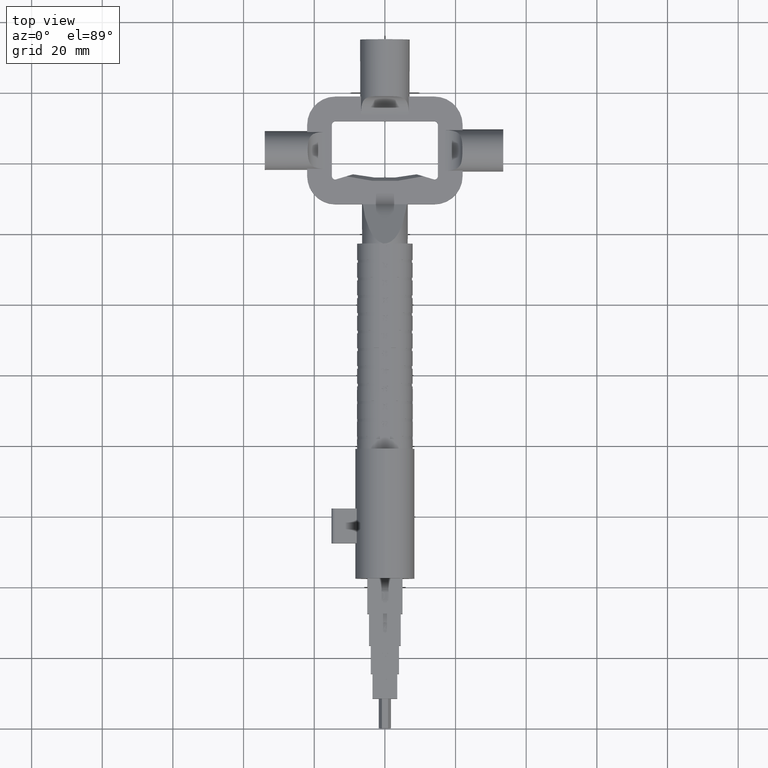
[diagram: clean part render]
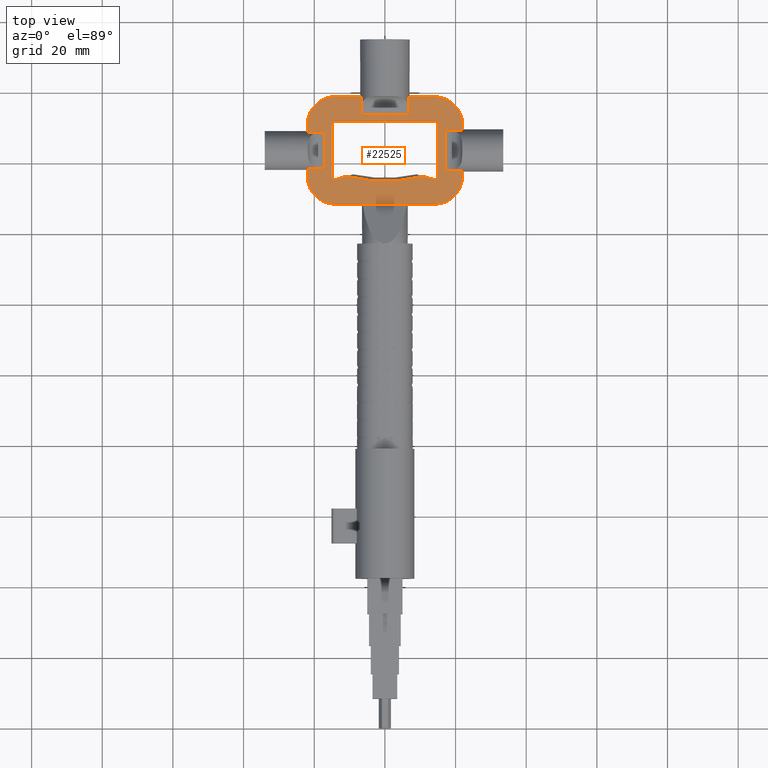
[diagram: same view with one face highlighted and labeled with its STEP entity id]
A machine part, top view. The second image highlights one B-rep face of the part: STEP entity #22525.
In plain terms, the highlighted planar face has unit normal (-0, 0, -1).
Its self-contained STEP definition (entity closure, byte-faithful):
#41 = AXIS2_PLACEMENT_3D ( 'NONE', #27260, #9884, #1859 ) ;
#318 = ORIENTED_EDGE ( 'NONE', *, *, #49266, .F. ) ;
#438 = DIRECTION ( 'NONE',  ( 1.000000000000000000, -0.000000000000000000, -0.000000000000000000 ) ) ;
#579 = VERTEX_POINT ( 'NONE', #19972 ) ;
#1099 = DIRECTION ( 'NONE',  ( -1.000000000000000000, 0.000000000000000000, 0.000000000000000000 ) ) ;
#1153 = DIRECTION ( 'NONE',  ( 1.000000000000000000, 0.000000000000000000, 0.000000000000000000 ) ) ;
#1189 = VECTOR ( 'NONE', #30305, 1000.000000000000000 ) ;
#1290 = LINE ( 'NONE', #36945, #32459 ) ;
#1396 = AXIS2_PLACEMENT_3D ( 'NONE', #38120, #12580, #25663 ) ;
#1762 = ORIENTED_EDGE ( 'NONE', *, *, #46426, .T. ) ;
#1859 = DIRECTION ( 'NONE',  ( 1.000000000000000000, 0.000000000000000000, 0.000000000000000000 ) ) ;
#1978 = VERTEX_POINT ( 'NONE', #24123 ) ;
#2190 = VERTEX_POINT ( 'NONE', #44877 ) ;
#2403 = VERTEX_POINT ( 'NONE', #36222 ) ;
#2696 = EDGE_CURVE ( 'NONE', #5194, #45800, #54187, .T. ) ;
#3520 = DIRECTION ( 'NONE',  ( -1.000000000000000000, -0.000000000000000000, -0.000000000000000000 ) ) ;
#3738 = LINE ( 'NONE', #11865, #48816 ) ;
#4007 = CARTESIAN_POINT ( 'NONE',  ( 13.99999999999999822, 156.3500000000000227, 1.774999999999999911 ) ) ;
#4045 = ORIENTED_EDGE ( 'NONE', *, *, #7936, .T. ) ;
#4261 = EDGE_CURVE ( 'NONE', #54300, #40722, #44534, .T. ) ;
#4347 = ORIENTED_EDGE ( 'NONE', *, *, #53432, .F. ) ;
#4351 = PLANE ( 'NONE',  #20973 ) ;
#4383 = VERTEX_POINT ( 'NONE', #49655 ) ;
#4449 = CARTESIAN_POINT ( 'NONE',  ( -13.99999999999999822, 170.8499999999999659, 1.774999999999999911 ) ) ;
#4695 = VECTOR ( 'NONE', #27708, 1000.000000000000000 ) ;
#4720 = DIRECTION ( 'NONE',  ( -0.000000000000000000, 0.000000000000000000, -1.000000000000000000 ) ) ;
#4725 = CARTESIAN_POINT ( 'NONE',  ( 13.99999999999999645, 148.3500000000000227, 1.774999999999999911 ) ) ;
#4727 = CIRCLE ( 'NONE', #19438, 1.000000000000002665 ) ;
#4735 = CARTESIAN_POINT ( 'NONE',  ( 13.99999999999999645, 148.3500000000000227, 1.774999999999999911 ) ) ;
#5189 = LINE ( 'NONE', #27889, #19104 ) ;
#5194 = VERTEX_POINT ( 'NONE', #12768 ) ;
#5511 = EDGE_CURVE ( 'NONE', #41476, #5194, #4727, .T. ) ;
#5743 = EDGE_LOOP ( 'NONE', ( #31504, #37375, #10492, #1762, #4045, #4347, #12259, #24055, #40278, #49239, #38031, #16485, #28990, #47144, #8316, #48904, #48134, #54723, #13640, #35166, #22591, #29968 ) ) ;
#5950 = DIRECTION ( 'NONE',  ( 0.000000000000000000, 0.000000000000000000, 1.000000000000000000 ) ) ;
#6170 = VERTEX_POINT ( 'NONE', #41458 ) ;
#6483 = VERTEX_POINT ( 'NONE', #17958 ) ;
#7261 = FACE_BOUND ( 'NONE', #36229, .T. ) ;
#7936 = EDGE_CURVE ( 'NONE', #45518, #6483, #46288, .T. ) ;
#8166 = EDGE_CURVE ( 'NONE', #13368, #1978, #31732, .T. ) ;
#8316 = ORIENTED_EDGE ( 'NONE', *, *, #29150, .T. ) ;
#8644 = CARTESIAN_POINT ( 'NONE',  ( -13.99999999999999822, 170.8499999999999659, 1.774999999999999911 ) ) ;
#8705 = DIRECTION ( 'NONE',  ( 0.000000000000000000, 1.000000000000000000, 0.000000000000000000 ) ) ;
#8744 = DIRECTION ( 'NONE',  ( 0.000000000000000000, 0.000000000000000000, 1.000000000000000000 ) ) ;
#8809 = LINE ( 'NONE', #14670, #29969 ) ;
#9296 = CARTESIAN_POINT ( 'NONE',  ( 22.00000000000000000, 170.8499999999999659, 1.774999999999999911 ) ) ;
#9746 = CARTESIAN_POINT ( 'NONE',  ( -22.00000000000000000, 168.8057060039921566, 1.774999999999999911 ) ) ;
#9884 = DIRECTION ( 'NONE',  ( 0.000000000000000000, 0.000000000000000000, 1.000000000000000000 ) ) ;
#9958 = LINE ( 'NONE', #45205, #42396 ) ;
#10133 = LINE ( 'NONE', #50922, #38577 ) ;
#10156 = EDGE_CURVE ( 'NONE', #43172, #29808, #5189, .T. ) ;
#10467 = VECTOR ( 'NONE', #37300, 1000.000000000000000 ) ;
#10492 = ORIENTED_EDGE ( 'NONE', *, *, #10156, .T. ) ;
#11308 = CARTESIAN_POINT ( 'NONE',  ( -22.00000000000000000, 156.3500000000000227, 1.774999999999999911 ) ) ;
#11342 = VECTOR ( 'NONE', #15326, 1000.000000000000000 ) ;
#11865 = CARTESIAN_POINT ( 'NONE',  ( -13.99999999999999822, 171.8499999999999659, 1.774999999999999911 ) ) ;
#12197 = CARTESIAN_POINT ( 'NONE',  ( 22.00000000000000000, 169.3314374287782300, 1.774999999999997247 ) ) ;
#12259 = ORIENTED_EDGE ( 'NONE', *, *, #51545, .T. ) ;
#12580 = DIRECTION ( 'NONE',  ( 0.000000000000000000, 0.000000000000000000, 1.000000000000000000 ) ) ;
#12680 = LINE ( 'NONE', #53125, #4695 ) ;
#12768 = CARTESIAN_POINT ( 'NONE',  ( 15.00000000000000355, 156.3500000000000227, 1.774999999999999911 ) ) ;
#12913 = VERTEX_POINT ( 'NONE', #32448 ) ;
#13368 = VERTEX_POINT ( 'NONE', #24011 ) ;
#13439 = CARTESIAN_POINT ( 'NONE',  ( 13.99999999999999822, 178.8499999999999943, 1.774999999999999911 ) ) ;
#13623 = CARTESIAN_POINT ( 'NONE',  ( 16.99999999999999645, 169.3314374287782300, 1.774999999999999911 ) ) ;
#13640 = ORIENTED_EDGE ( 'NONE', *, *, #4261, .T. ) ;
#13753 = CARTESIAN_POINT ( 'NONE',  ( 0.000000000000000000, 148.3500000000000227, 1.775000000000000355 ) ) ;
#13772 = CARTESIAN_POINT ( 'NONE',  ( -17.00000000000000000, 168.8057060039921566, 1.774999999999999911 ) ) ;
#13843 = CARTESIAN_POINT ( 'NONE',  ( 13.99999999999999645, 148.3500000000000227, 1.774999999999999911 ) ) ;
#13896 = VECTOR ( 'NONE', #13914, 1000.000000000000000 ) ;
#13914 = DIRECTION ( 'NONE',  ( -0.000000000000000000, 1.000000000000000000, -0.000000000000000000 ) ) ;
#14096 = CARTESIAN_POINT ( 'NONE',  ( -22.00000000000000000, 168.8057060039921566, 1.774999999999999911 ) ) ;
#14174 = LINE ( 'NONE', #42876, #38012 ) ;
#14670 = CARTESIAN_POINT ( 'NONE',  ( 6.771216655815821994, 178.8500000000000227, 1.774999999999999023 ) ) ;
#14935 = AXIS2_PLACEMENT_3D ( 'NONE', #53629, #53810, #28407 ) ;
#15095 = DIRECTION ( 'NONE',  ( -0.9578262852211542056, -0.2873478855663358922, -0.000000000000000000 ) ) ;
#15217 = DIRECTION ( 'NONE',  ( 9.912705577010328508E-16, -1.000000000000000000, -0.000000000000000000 ) ) ;
#15222 = CARTESIAN_POINT ( 'NONE',  ( -13.99999999999999822, 171.8499999999999659, 1.774999999999999911 ) ) ;
#15326 = DIRECTION ( 'NONE',  ( -1.000000000000000000, -9.912705577010328508E-16, 0.000000000000000000 ) ) ;
#15442 = DIRECTION ( 'NONE',  ( 1.000000000000000000, 0.000000000000000000, 0.000000000000000000 ) ) ;
#15726 = CIRCLE ( 'NONE', #22271, 8.000000000000007105 ) ;
#15830 = CARTESIAN_POINT ( 'NONE',  ( 6.771216655815827323, 173.8499999999999943, 1.774999999999999911 ) ) ;
#16188 = EDGE_CURVE ( 'NONE', #26265, #579, #10133, .T. ) ;
#16465 = CARTESIAN_POINT ( 'NONE',  ( -16.99999999999999645, 158.3942939960078320, 1.774999999999999911 ) ) ;
#16485 = ORIENTED_EDGE ( 'NONE', *, *, #47736, .T. ) ;
#16727 = CIRCLE ( 'NONE', #43869, 8.000000000000003553 ) ;
#17958 = CARTESIAN_POINT ( 'NONE',  ( -6.252949304128412322, 148.3500000000000227, 1.774999999999999911 ) ) ;
#17995 = CARTESIAN_POINT ( 'NONE',  ( -16.99999999999999645, 158.3942939960078604, 1.774999999999999911 ) ) ;
#18141 = VECTOR ( 'NONE', #15095, 1000.000000000000227 ) ;
#18265 = DIRECTION ( 'NONE',  ( 1.000000000000000000, 2.392722035830085874E-16, -0.000000000000000000 ) ) ;
#18972 = EDGE_CURVE ( 'NONE', #38612, #54340, #8809, .T. ) ;
#19104 = VECTOR ( 'NONE', #36090, 1000.000000000000000 ) ;
#19438 = AXIS2_PLACEMENT_3D ( 'NONE', #4007, #46229, #54595 ) ;
#19493 = CARTESIAN_POINT ( 'NONE',  ( -13.99999999999999822, 156.3500000000000227, 1.774999999999999911 ) ) ;
#19542 = CARTESIAN_POINT ( 'NONE',  ( 13.99999999999999822, 171.8499999999999659, 1.774999999999999911 ) ) ;
#19583 = EDGE_CURVE ( 'NONE', #2190, #20829, #20658, .T. ) ;
#19831 = AXIS2_PLACEMENT_3D ( 'NONE', #31332, #40028, #27239 ) ;
#19972 = CARTESIAN_POINT ( 'NONE',  ( 16.99999999999999645, 169.3314374287782300, 1.774999999999999911 ) ) ;
#20078 = CARTESIAN_POINT ( 'NONE',  ( 15.00000000000000000, 170.8499999999999659, 1.774999999999999911 ) ) ;
#20456 = EDGE_CURVE ( 'NONE', #49326, #50896, #39168, .T. ) ;
#20658 = LINE ( 'NONE', #53116, #27933 ) ;
#20829 = VERTEX_POINT ( 'NONE', #25127 ) ;
#20973 = AXIS2_PLACEMENT_3D ( 'NONE', #8644, #4720, #21560 ) ;
#21119 = EDGE_CURVE ( 'NONE', #54340, #2403, #26566, .T. ) ;
#21335 = EDGE_CURVE ( 'NONE', #54636, #26265, #1290, .T. ) ;
#21560 = DIRECTION ( 'NONE',  ( -1.000000000000000000, 0.000000000000000000, 0.000000000000000000 ) ) ;
#21910 = EDGE_CURVE ( 'NONE', #41633, #52047, #54983, .T. ) ;
#22271 = AXIS2_PLACEMENT_3D ( 'NONE', #4449, #8744, #38346 ) ;
#22525 = ADVANCED_FACE ( 'NONE', ( #37030, #7261 ), #4351, .F. ) ;
#22580 = DIRECTION ( 'NONE',  ( -1.000000000000000000, 0.000000000000000000, 0.000000000000000000 ) ) ;
#22591 = ORIENTED_EDGE ( 'NONE', *, *, #47490, .T. ) ;
#22667 = CIRCLE ( 'NONE', #1396, 8.000000000000003553 ) ;
#22933 = ORIENTED_EDGE ( 'NONE', *, *, #53598, .F. ) ;
#23501 = CARTESIAN_POINT ( 'NONE',  ( 22.00000000000000000, 157.8685625712217586, 1.774999999999999911 ) ) ;
#23987 = CARTESIAN_POINT ( 'NONE',  ( 22.00000000000000000, 170.8499999999999659, 1.774999999999999911 ) ) ;
#24011 = CARTESIAN_POINT ( 'NONE',  ( 10.88406708194079542, 156.2847798754177404, 1.774999999999999911 ) ) ;
#24055 = ORIENTED_EDGE ( 'NONE', *, *, #40517, .T. ) ;
#24123 = CARTESIAN_POINT ( 'NONE',  ( -10.88406708194078831, 156.2847798754177404, 1.774999999999999911 ) ) ;
#25127 = CARTESIAN_POINT ( 'NONE',  ( -15.00000000000000000, 156.3500000000000227, 1.774999999999999911 ) ) ;
#25256 = LINE ( 'NONE', #16465, #41849 ) ;
#25460 = CARTESIAN_POINT ( 'NONE',  ( 22.00000000000000000, 170.8499999999999659, 1.774999999999999911 ) ) ;
#25476 = CARTESIAN_POINT ( 'NONE',  ( 6.252949304128410546, 148.3500000000000227, 1.774999999999999911 ) ) ;
#25655 = CARTESIAN_POINT ( 'NONE',  ( -14.00000000000000000, 148.3500000000000227, 1.774999999999999911 ) ) ;
#25663 = DIRECTION ( 'NONE',  ( -1.000000000000000000, 0.000000000000000000, 0.000000000000000000 ) ) ;
#25917 = DIRECTION ( 'NONE',  ( -1.000000000000000000, -2.392722035830085874E-16, 0.000000000000000000 ) ) ;
#26265 = VERTEX_POINT ( 'NONE', #32098 ) ;
#26359 = DIRECTION ( 'NONE',  ( 1.000000000000000000, 0.000000000000000000, 0.000000000000000000 ) ) ;
#26377 = CIRCLE ( 'NONE', #47107, 8.000000000000017764 ) ;
#26566 = LINE ( 'NONE', #53113, #11342 ) ;
#27084 = ORIENTED_EDGE ( 'NONE', *, *, #2696, .F. ) ;
#27239 = DIRECTION ( 'NONE',  ( 1.000000000000000000, 0.000000000000000000, 0.000000000000000000 ) ) ;
#27260 = CARTESIAN_POINT ( 'NONE',  ( -13.99999999999999822, 156.3500000000000227, 1.774999999999999911 ) ) ;
#27708 = DIRECTION ( 'NONE',  ( 2.392722035830085874E-16, -1.000000000000000000, -0.000000000000000000 ) ) ;
#27889 = CARTESIAN_POINT ( 'NONE',  ( -22.00000000000000000, 156.3500000000000227, 1.774999999999999911 ) ) ;
#27933 = VECTOR ( 'NONE', #48840, 1000.000000000000000 ) ;
#28407 = DIRECTION ( 'NONE',  ( -1.000000000000000000, 0.000000000000000000, 0.000000000000000000 ) ) ;
#28829 = CARTESIAN_POINT ( 'NONE',  ( -22.00000000000000355, 170.8499999999999659, 1.774999999999999911 ) ) ;
#28990 = ORIENTED_EDGE ( 'NONE', *, *, #21910, .T. ) ;
#29150 = EDGE_CURVE ( 'NONE', #34660, #38612, #14174, .T. ) ;
#29808 = VERTEX_POINT ( 'NONE', #11308 ) ;
#29890 = DIRECTION ( 'NONE',  ( 0.000000000000000000, 0.000000000000000000, 1.000000000000000000 ) ) ;
#29968 = ORIENTED_EDGE ( 'NONE', *, *, #20456, .T. ) ;
#29969 = VECTOR ( 'NONE', #15217, 1000.000000000000000 ) ;
#30209 = LINE ( 'NONE', #13753, #36840 ) ;
#30305 = DIRECTION ( 'NONE',  ( 1.000000000000000000, -0.000000000000000000, -0.000000000000000000 ) ) ;
#30919 = VERTEX_POINT ( 'NONE', #19542 ) ;
#31332 = CARTESIAN_POINT ( 'NONE',  ( 13.99999999999999822, 170.8499999999999659, 1.774999999999999911 ) ) ;
#31334 = LINE ( 'NONE', #17995, #41236 ) ;
#31504 = ORIENTED_EDGE ( 'NONE', *, *, #41583, .T. ) ;
#31732 = CIRCLE ( 'NONE', #14935, 41.99999999999992895 ) ;
#31758 = CIRCLE ( 'NONE', #49957, 1.000000000000000888 ) ;
#32098 = CARTESIAN_POINT ( 'NONE',  ( 16.99999999999999645, 157.8685625712217586, 1.774999999999999911 ) ) ;
#32240 = DIRECTION ( 'NONE',  ( -0.9578262852211542056, 0.2873478855663360587, -0.000000000000000000 ) ) ;
#32408 = CARTESIAN_POINT ( 'NONE',  ( 9.000000000000001776, 156.8499999999999659, 1.774999999999999911 ) ) ;
#32448 = CARTESIAN_POINT ( 'NONE',  ( -16.99999999999999645, 158.3942939960078604, 1.774999999999999911 ) ) ;
#32459 = VECTOR ( 'NONE', #45463, 1000.000000000000000 ) ;
#32862 = ORIENTED_EDGE ( 'NONE', *, *, #52308, .F. ) ;
#33385 = EDGE_CURVE ( 'NONE', #52047, #34660, #26377, .T. ) ;
#33474 = DIRECTION ( 'NONE',  ( -0.000000000000000000, 1.000000000000000000, -0.000000000000000000 ) ) ;
#33610 = VECTOR ( 'NONE', #438, 1000.000000000000000 ) ;
#33886 = VECTOR ( 'NONE', #1153, 1000.000000000000000 ) ;
#34011 = DIRECTION ( 'NONE',  ( -1.000000000000000000, -9.912705577010328508E-16, -0.000000000000000000 ) ) ;
#34111 = LINE ( 'NONE', #25460, #53993 ) ;
#34328 = CARTESIAN_POINT ( 'NONE',  ( -13.99999999999999822, 178.8499999999999943, 1.774999999999999911 ) ) ;
#34579 = VERTEX_POINT ( 'NONE', #4725 ) ;
#34660 = VERTEX_POINT ( 'NONE', #13439 ) ;
#35166 = ORIENTED_EDGE ( 'NONE', *, *, #35273, .T. ) ;
#35273 = EDGE_CURVE ( 'NONE', #40722, #37894, #15726, .T. ) ;
#35850 = LINE ( 'NONE', #13623, #33886 ) ;
#36090 = DIRECTION ( 'NONE',  ( 2.392722035830085874E-16, -1.000000000000000000, -0.000000000000000000 ) ) ;
#36125 = VECTOR ( 'NONE', #32240, 1000.000000000000000 ) ;
#36222 = CARTESIAN_POINT ( 'NONE',  ( -6.771216655816171048, 173.8499999999999943, 1.774999999999999911 ) ) ;
#36229 = EDGE_LOOP ( 'NONE', ( #53875, #38543, #52955, #39131, #52686, #318, #32862, #22933, #27084, #49945 ) ) ;
#36840 = VECTOR ( 'NONE', #1099, 1000.000000000000000 ) ;
#36945 = CARTESIAN_POINT ( 'NONE',  ( 22.00000000000000000, 157.8685625712217586, 1.774999999999999911 ) ) ;
#37030 = FACE_OUTER_BOUND ( 'NONE', #5743, .T. ) ;
#37300 = DIRECTION ( 'NONE',  ( -2.392722035830085874E-16, 1.000000000000000000, -0.000000000000000000 ) ) ;
#37365 = DIRECTION ( 'NONE',  ( 2.392722035830085874E-16, -1.000000000000000000, 0.000000000000000000 ) ) ;
#37375 = ORIENTED_EDGE ( 'NONE', *, *, #45209, .T. ) ;
#37894 = VERTEX_POINT ( 'NONE', #28829 ) ;
#37930 = EDGE_CURVE ( 'NONE', #4383, #54636, #34111, .T. ) ;
#38012 = VECTOR ( 'NONE', #34011, 1000.000000000000000 ) ;
#38031 = ORIENTED_EDGE ( 'NONE', *, *, #16188, .T. ) ;
#38120 = CARTESIAN_POINT ( 'NONE',  ( 13.99999999999999822, 156.3500000000000227, 1.774999999999999911 ) ) ;
#38346 = DIRECTION ( 'NONE',  ( -1.000000000000000000, 0.000000000000000000, 0.000000000000000000 ) ) ;
#38543 = ORIENTED_EDGE ( 'NONE', *, *, #8166, .T. ) ;
#38577 = VECTOR ( 'NONE', #8705, 1000.000000000000000 ) ;
#38579 = DIRECTION ( 'NONE',  ( -1.000000000000000000, -9.912705577010328508E-16, -0.000000000000000000 ) ) ;
#38612 = VERTEX_POINT ( 'NONE', #54270 ) ;
#39131 = ORIENTED_EDGE ( 'NONE', *, *, #42465, .F. ) ;
#39168 = LINE ( 'NONE', #9746, #53124 ) ;
#39219 = VECTOR ( 'NONE', #38579, 1000.000000000000000 ) ;
#39394 = EDGE_CURVE ( 'NONE', #1978, #6170, #48620, .T. ) ;
#40028 = DIRECTION ( 'NONE',  ( 0.000000000000000000, 0.000000000000000000, 1.000000000000000000 ) ) ;
#40278 = ORIENTED_EDGE ( 'NONE', *, *, #37930, .T. ) ;
#40517 = EDGE_CURVE ( 'NONE', #34579, #4383, #22667, .T. ) ;
#40722 = VERTEX_POINT ( 'NONE', #44748 ) ;
#41236 = VECTOR ( 'NONE', #25917, 1000.000000000000000 ) ;
#41458 = CARTESIAN_POINT ( 'NONE',  ( -13.99999999999999645, 155.3500000000000227, 1.774999999999999911 ) ) ;
#41476 = VERTEX_POINT ( 'NONE', #47970 ) ;
#41583 = EDGE_CURVE ( 'NONE', #50896, #12913, #25256, .T. ) ;
#41633 = VERTEX_POINT ( 'NONE', #12197 ) ;
#41676 = DIRECTION ( 'NONE',  ( -9.912705577010328508E-16, 1.000000000000000000, 0.000000000000000000 ) ) ;
#41849 = VECTOR ( 'NONE', #37365, 1000.000000000000000 ) ;
#42396 = VECTOR ( 'NONE', #41676, 1000.000000000000000 ) ;
#42465 = EDGE_CURVE ( 'NONE', #20829, #6170, #49090, .T. ) ;
#42497 = CARTESIAN_POINT ( 'NONE',  ( 13.99999999999999822, 170.8499999999999659, 1.774999999999999911 ) ) ;
#42876 = CARTESIAN_POINT ( 'NONE',  ( -13.99999999999999822, 178.8499999999999943, 1.774999999999999911 ) ) ;
#43172 = VERTEX_POINT ( 'NONE', #45853 ) ;
#43709 = CARTESIAN_POINT ( 'NONE',  ( -13.99999999999999822, 170.8499999999999659, 1.774999999999999911 ) ) ;
#43869 = AXIS2_PLACEMENT_3D ( 'NONE', #19493, #52881, #15442 ) ;
#43943 = EDGE_CURVE ( 'NONE', #2403, #54300, #9958, .T. ) ;
#44534 = LINE ( 'NONE', #34328, #39219 ) ;
#44748 = CARTESIAN_POINT ( 'NONE',  ( -13.99999999999999822, 178.8499999999999943, 1.774999999999999911 ) ) ;
#44877 = CARTESIAN_POINT ( 'NONE',  ( -15.00000000000000000, 170.8499999999999659, 1.774999999999999911 ) ) ;
#45205 = CARTESIAN_POINT ( 'NONE',  ( -6.771216655816171048, 173.8499999999999943, 1.774999999999999911 ) ) ;
#45209 = EDGE_CURVE ( 'NONE', #12913, #43172, #31334, .T. ) ;
#45463 = DIRECTION ( 'NONE',  ( -1.000000000000000000, -0.000000000000000000, -0.000000000000000000 ) ) ;
#45518 = VERTEX_POINT ( 'NONE', #25655 ) ;
#45563 = VERTEX_POINT ( 'NONE', #25476 ) ;
#45800 = VERTEX_POINT ( 'NONE', #48645 ) ;
#45853 = CARTESIAN_POINT ( 'NONE',  ( -22.00000000000000000, 158.3942939960078320, 1.774999999999999911 ) ) ;
#46085 = CIRCLE ( 'NONE', #19831, 1.000000000000000888 ) ;
#46229 = DIRECTION ( 'NONE',  ( 0.000000000000000000, 0.000000000000000000, 1.000000000000000000 ) ) ;
#46288 = LINE ( 'NONE', #13843, #1189 ) ;
#46426 = EDGE_CURVE ( 'NONE', #29808, #45518, #16727, .T. ) ;
#46975 = VERTEX_POINT ( 'NONE', #15222 ) ;
#47107 = AXIS2_PLACEMENT_3D ( 'NONE', #42497, #29890, #26359 ) ;
#47144 = ORIENTED_EDGE ( 'NONE', *, *, #33385, .T. ) ;
#47383 = LINE ( 'NONE', #32408, #36125 ) ;
#47490 = EDGE_CURVE ( 'NONE', #37894, #49326, #12680, .T. ) ;
#47736 = EDGE_CURVE ( 'NONE', #579, #41633, #35850, .T. ) ;
#47970 = CARTESIAN_POINT ( 'NONE',  ( 13.99999999999999822, 155.3500000000000227, 1.774999999999999911 ) ) ;
#48134 = ORIENTED_EDGE ( 'NONE', *, *, #21119, .T. ) ;
#48620 = LINE ( 'NONE', #48955, #18141 ) ;
#48645 = CARTESIAN_POINT ( 'NONE',  ( 15.00000000000000000, 170.8499999999999659, 1.774999999999999911 ) ) ;
#48816 = VECTOR ( 'NONE', #3520, 1000.000000000000000 ) ;
#48840 = DIRECTION ( 'NONE',  ( -0.000000000000000000, -1.000000000000000000, -0.000000000000000000 ) ) ;
#48904 = ORIENTED_EDGE ( 'NONE', *, *, #18972, .T. ) ;
#48955 = CARTESIAN_POINT ( 'NONE',  ( -13.99999999999999645, 155.3500000000000227, 1.774999999999999911 ) ) ;
#49090 = CIRCLE ( 'NONE', #41, 1.000000000000000888 ) ;
#49239 = ORIENTED_EDGE ( 'NONE', *, *, #21335, .T. ) ;
#49266 = EDGE_CURVE ( 'NONE', #46975, #2190, #31758, .T. ) ;
#49326 = VERTEX_POINT ( 'NONE', #14096 ) ;
#49655 = CARTESIAN_POINT ( 'NONE',  ( 22.00000000000000355, 156.3500000000000227, 1.774999999999999911 ) ) ;
#49707 = CARTESIAN_POINT ( 'NONE',  ( -6.771216655816175489, 178.8500000000000227, 1.774999999999999023 ) ) ;
#49945 = ORIENTED_EDGE ( 'NONE', *, *, #5511, .F. ) ;
#49957 = AXIS2_PLACEMENT_3D ( 'NONE', #43709, #5950, #22580 ) ;
#50896 = VERTEX_POINT ( 'NONE', #13772 ) ;
#50922 = CARTESIAN_POINT ( 'NONE',  ( 16.99999999999999645, 169.3314374287782300, 1.774999999999999911 ) ) ;
#51530 = LINE ( 'NONE', #4735, #33610 ) ;
#51545 = EDGE_CURVE ( 'NONE', #45563, #34579, #51530, .T. ) ;
#52047 = VERTEX_POINT ( 'NONE', #23987 ) ;
#52308 = EDGE_CURVE ( 'NONE', #30919, #46975, #3738, .T. ) ;
#52686 = ORIENTED_EDGE ( 'NONE', *, *, #19583, .F. ) ;
#52881 = DIRECTION ( 'NONE',  ( 0.000000000000000000, 0.000000000000000000, 1.000000000000000000 ) ) ;
#52955 = ORIENTED_EDGE ( 'NONE', *, *, #39394, .T. ) ;
#53113 = CARTESIAN_POINT ( 'NONE',  ( -6.771216655816170160, 173.8499999999999943, 1.774999999999999911 ) ) ;
#53116 = CARTESIAN_POINT ( 'NONE',  ( -15.00000000000000000, 156.3500000000000227, 1.774999999999999911 ) ) ;
#53124 = VECTOR ( 'NONE', #18265, 1000.000000000000000 ) ;
#53125 = CARTESIAN_POINT ( 'NONE',  ( -22.00000000000000000, 156.3500000000000227, 1.774999999999999911 ) ) ;
#53432 = EDGE_CURVE ( 'NONE', #45563, #6483, #30209, .T. ) ;
#53598 = EDGE_CURVE ( 'NONE', #45800, #30919, #46085, .T. ) ;
#53629 = CARTESIAN_POINT ( 'NONE',  ( 3.163863720612598832E-15, 196.8499999999999091, 1.774999999999999911 ) ) ;
#53810 = DIRECTION ( 'NONE',  ( -0.000000000000000000, -0.000000000000000000, -1.000000000000000000 ) ) ;
#53875 = ORIENTED_EDGE ( 'NONE', *, *, #54650, .T. ) ;
#53993 = VECTOR ( 'NONE', #33474, 1000.000000000000000 ) ;
#54187 = LINE ( 'NONE', #20078, #10467 ) ;
#54270 = CARTESIAN_POINT ( 'NONE',  ( 6.771216655815821994, 178.8500000000000227, 1.774999999999999023 ) ) ;
#54300 = VERTEX_POINT ( 'NONE', #49707 ) ;
#54340 = VERTEX_POINT ( 'NONE', #15830 ) ;
#54595 = DIRECTION ( 'NONE',  ( -1.000000000000000000, 0.000000000000000000, 0.000000000000000000 ) ) ;
#54636 = VERTEX_POINT ( 'NONE', #23501 ) ;
#54650 = EDGE_CURVE ( 'NONE', #41476, #13368, #47383, .T. ) ;
#54723 = ORIENTED_EDGE ( 'NONE', *, *, #43943, .T. ) ;
#54983 = LINE ( 'NONE', #9296, #13896 ) ;